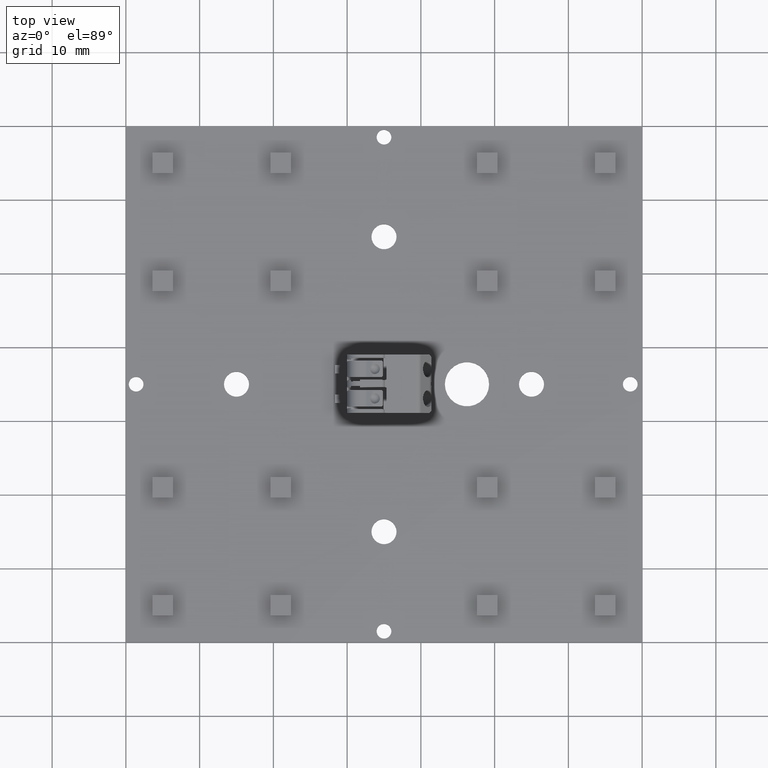
[diagram: clean part render]
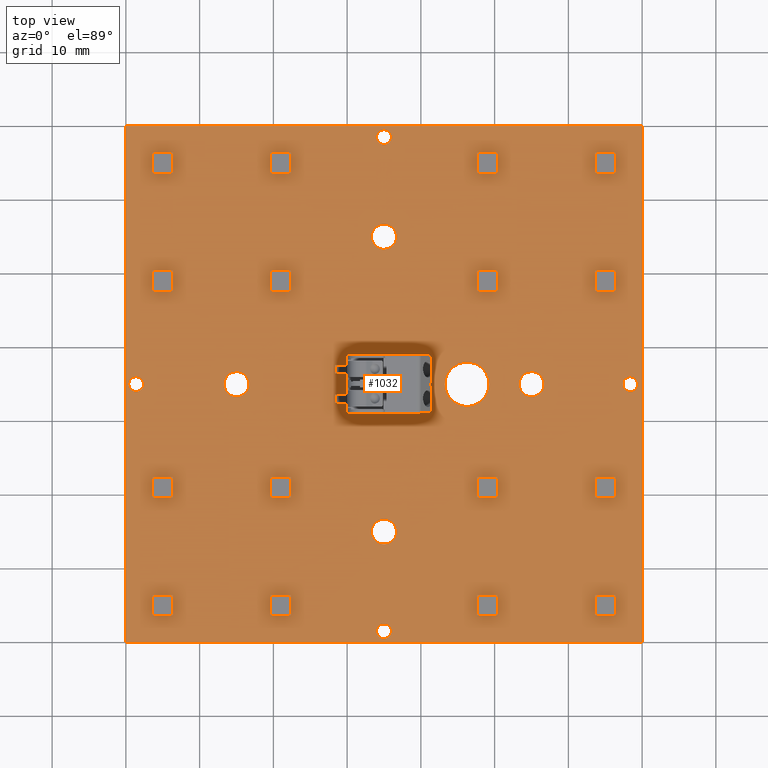
[diagram: same view with one face highlighted and labeled with its STEP entity id]
A machine part, top view. The second image highlights one B-rep face of the part: STEP entity #1032.
In plain terms, the highlighted planar face has unit normal (0, 0, 1).
Its self-contained STEP definition (entity closure, byte-faithful):
#897=FACE_BOUND('',#1512,.T.);
#898=FACE_BOUND('',#1513,.T.);
#899=FACE_BOUND('',#1514,.T.);
#900=FACE_BOUND('',#1515,.T.);
#901=FACE_BOUND('',#1516,.T.);
#902=FACE_BOUND('',#1517,.T.);
#903=FACE_BOUND('',#1518,.T.);
#904=FACE_BOUND('',#1519,.T.);
#905=FACE_BOUND('',#1520,.T.);
#906=FACE_BOUND('',#1521,.T.);
#912=CIRCLE('',#4213,1.7);
#914=CIRCLE('',#4216,3.);
#916=CIRCLE('',#4219,1.);
#918=CIRCLE('',#4222,1.);
#920=CIRCLE('',#4225,1.7);
#922=CIRCLE('',#4228,1.7);
#924=CIRCLE('',#4231,1.7);
#926=CIRCLE('',#4234,1.);
#928=CIRCLE('',#4238,1.);
#1032=ADVANCED_FACE('',(#897,#898,#899,#900,#901,#902,#903,#904,#905,#906),
#1203,.T.);
#1203=PLANE('',#4241);
#1512=EDGE_LOOP('',(#1736,#1737,#1738,#1739));
#1513=EDGE_LOOP('',(#1740));
#1514=EDGE_LOOP('',(#1741));
#1515=EDGE_LOOP('',(#1742));
#1516=EDGE_LOOP('',(#1743));
#1517=EDGE_LOOP('',(#1744));
#1518=EDGE_LOOP('',(#1745));
#1519=EDGE_LOOP('',(#1746));
#1520=EDGE_LOOP('',(#1747));
#1521=EDGE_LOOP('',(#1748));
#1736=ORIENTED_EDGE('',*,*,#3011,.T.);
#1737=ORIENTED_EDGE('',*,*,#3015,.T.);
#1738=ORIENTED_EDGE('',*,*,#3018,.T.);
#1739=ORIENTED_EDGE('',*,*,#3037,.T.);
#1740=ORIENTED_EDGE('',*,*,#3036,.F.);
#1741=ORIENTED_EDGE('',*,*,#3034,.F.);
#1742=ORIENTED_EDGE('',*,*,#3032,.F.);
#1743=ORIENTED_EDGE('',*,*,#3030,.F.);
#1744=ORIENTED_EDGE('',*,*,#3028,.F.);
#1745=ORIENTED_EDGE('',*,*,#3026,.F.);
#1746=ORIENTED_EDGE('',*,*,#3024,.F.);
#1747=ORIENTED_EDGE('',*,*,#3022,.F.);
#1748=ORIENTED_EDGE('',*,*,#3040,.F.);
#2679=VERTEX_POINT('',#5512);
#2680=VERTEX_POINT('',#5513);
#2683=VERTEX_POINT('',#5521);
#2685=VERTEX_POINT('',#5527);
#2688=VERTEX_POINT('',#5535);
#2690=VERTEX_POINT('',#5540);
#2692=VERTEX_POINT('',#5545);
#2694=VERTEX_POINT('',#5550);
#2696=VERTEX_POINT('',#5555);
#2698=VERTEX_POINT('',#5560);
#2700=VERTEX_POINT('',#5565);
#2702=VERTEX_POINT('',#5570);
#2704=VERTEX_POINT('',#5578);
#3011=EDGE_CURVE('',#2679,#2680,#3506,.T.);
#3015=EDGE_CURVE('',#2680,#2683,#3510,.T.);
#3018=EDGE_CURVE('',#2683,#2685,#3513,.T.);
#3022=EDGE_CURVE('',#2688,#2688,#912,.T.);
#3024=EDGE_CURVE('',#2690,#2690,#914,.T.);
#3026=EDGE_CURVE('',#2692,#2692,#916,.T.);
#3028=EDGE_CURVE('',#2694,#2694,#918,.T.);
#3030=EDGE_CURVE('',#2696,#2696,#920,.T.);
#3032=EDGE_CURVE('',#2698,#2698,#922,.T.);
#3034=EDGE_CURVE('',#2700,#2700,#924,.T.);
#3036=EDGE_CURVE('',#2702,#2702,#926,.T.);
#3037=EDGE_CURVE('',#2685,#2679,#3516,.T.);
#3040=EDGE_CURVE('',#2704,#2704,#928,.T.);
#3506=LINE('',#5511,#3857);
#3510=LINE('',#5520,#3861);
#3513=LINE('',#5526,#3864);
#3516=LINE('',#5572,#3867);
#3857=VECTOR('',#4527,1.);
#3861=VECTOR('',#4533,1.);
#3864=VECTOR('',#4538,1.);
#3867=VECTOR('',#4591,1.);
#4213=AXIS2_PLACEMENT_3D('',#5534,#4545,#4546);
#4216=AXIS2_PLACEMENT_3D('',#5539,#4551,#4552);
#4219=AXIS2_PLACEMENT_3D('',#5544,#4557,#4558);
#4222=AXIS2_PLACEMENT_3D('',#5549,#4563,#4564);
#4225=AXIS2_PLACEMENT_3D('',#5554,#4569,#4570);
#4228=AXIS2_PLACEMENT_3D('',#5559,#4575,#4576);
#4231=AXIS2_PLACEMENT_3D('',#5564,#4581,#4582);
#4234=AXIS2_PLACEMENT_3D('',#5569,#4587,#4588);
#4238=AXIS2_PLACEMENT_3D('',#5577,#4597,#4598);
#4241=AXIS2_PLACEMENT_3D('',#5581,#4603,#4604);
#4527=DIRECTION('',(0.,1.,0.));
#4533=DIRECTION('',(-1.,0.,0.));
#4538=DIRECTION('',(0.,-1.,0.));
#4545=DIRECTION('',(0.,0.,1.));
#4546=DIRECTION('',(1.,0.,0.));
#4551=DIRECTION('',(0.,0.,1.));
#4552=DIRECTION('',(1.,0.,0.));
#4557=DIRECTION('',(0.,0.,1.));
#4558=DIRECTION('',(1.,0.,0.));
#4563=DIRECTION('',(0.,0.,1.));
#4564=DIRECTION('',(1.,0.,0.));
#4569=DIRECTION('',(0.,0.,1.));
#4570=DIRECTION('',(1.,0.,0.));
#4575=DIRECTION('',(0.,0.,1.));
#4576=DIRECTION('',(1.,0.,0.));
#4581=DIRECTION('',(0.,0.,1.));
#4582=DIRECTION('',(1.,0.,0.));
#4587=DIRECTION('',(0.,0.,1.));
#4588=DIRECTION('',(1.,0.,0.));
#4591=DIRECTION('',(1.,0.,0.));
#4597=DIRECTION('',(0.,0.,1.));
#4598=DIRECTION('',(1.,0.,0.));
#4603=DIRECTION('',(0.,0.,1.));
#4604=DIRECTION('',(1.,0.,0.));
#5511=CARTESIAN_POINT('',(70.,0.,0.));
#5512=CARTESIAN_POINT('',(70.,0.,0.));
#5513=CARTESIAN_POINT('',(70.,70.,0.));
#5520=CARTESIAN_POINT('',(70.,70.,0.));
#5521=CARTESIAN_POINT('',(0.,70.,0.));
#5526=CARTESIAN_POINT('',(0.,70.,0.));
#5527=CARTESIAN_POINT('',(0.,0.,0.));
#5534=CARTESIAN_POINT('',(55.,35.,0.));
#5535=CARTESIAN_POINT('',(56.7,35.,0.));
#5539=CARTESIAN_POINT('',(46.25,35.,0.));
#5540=CARTESIAN_POINT('',(49.25,35.,0.));
#5544=CARTESIAN_POINT('',(35.,68.5,0.));
#5545=CARTESIAN_POINT('',(36.,68.5,0.));
#5549=CARTESIAN_POINT('',(35.,1.5,0.));
#5550=CARTESIAN_POINT('',(36.,1.5,0.));
#5554=CARTESIAN_POINT('',(35.,55.,0.));
#5555=CARTESIAN_POINT('',(36.7,55.,0.));
#5559=CARTESIAN_POINT('',(35.,15.,0.));
#5560=CARTESIAN_POINT('',(36.7,15.,0.));
#5564=CARTESIAN_POINT('',(15.,35.,0.));
#5565=CARTESIAN_POINT('',(16.7,35.,0.));
#5569=CARTESIAN_POINT('',(1.3907,35.,0.));
#5570=CARTESIAN_POINT('',(2.3907,35.,0.));
#5572=CARTESIAN_POINT('',(0.,0.,0.));
#5577=CARTESIAN_POINT('',(68.3907,35.,0.));
#5578=CARTESIAN_POINT('',(69.3907,35.,0.));
#5581=CARTESIAN_POINT('',(1.3907,35.,0.));